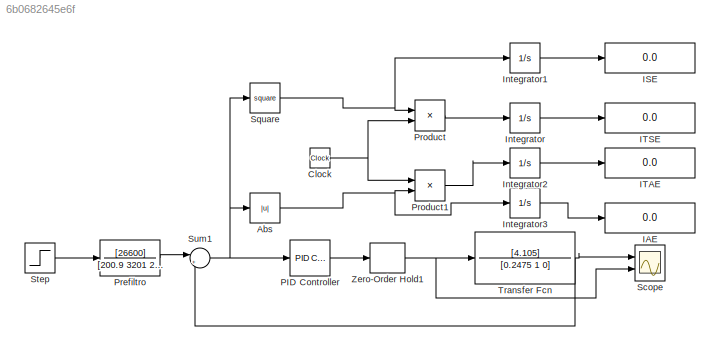
MODEL slx_6b0682645e6f
KIND model
CONFIG AbsTol = auto
CONFIG EnableMultiTasking = off
CONFIG FixedStep = auto
CONFIG MaxStep = auto
CONFIG MinStep = auto
CONFIG RelTol = 1e-3
CONFIG SampleTimeConstraint = Unconstrained
CONFIG Solver = VariableStepAuto
CONFIG SolverName = VariableStepAuto
CONFIG StartTime = 0.0
CONFIG StopTime = 10.0
BLOCK [Abs] Abs
  SaturateOnIntegerOverflow = off
BLOCK [Clock] Clock
BLOCK [Display] IAE
  Decimation = 1
  Ports = [1]
BLOCK [Display] ISE
  Decimation = 1
  Ports = [1]
BLOCK [Display] ITAE
  Decimation = 1
  Ports = [1]
BLOCK [Display] ITSE
  Decimation = 1
  Ports = [1]
BLOCK [Integrator] Integrator
  Ports = [1, 1]
BLOCK [Integrator] Integrator1
  Ports = [1, 1]
BLOCK [Integrator] Integrator2
  Ports = [1, 1]
BLOCK [Integrator] Integrator3
  Ports = [1, 1]
BLOCK [Reference] PID Controller  REF=simulink/Continuous/PID Controller
  Ports = [1, 1]
  SourceBlock = simulink/Continuous/PID Controller
  SourceProductBaseCode = SL
  SourceProductName = Simulink
  SourceType = PID 1dof
BLOCK [TransferFcn] Prefiltro
  Denominator = [200.9 3201 26600]
  Numerator = [26600]
BLOCK [Product] Product
  InputSameDT = off
  OutDataTypeStr = Inherit: Inherit via internal rule
  Ports = [2, 1]
  RndMeth = Floor
  SaturateOnIntegerOverflow = off
BLOCK [Product] Product1
  InputSameDT = off
  OutDataTypeStr = Inherit: Inherit via internal rule
  Ports = [2, 1]
  RndMeth = Floor
  SaturateOnIntegerOverflow = off
BLOCK [Scope] Scope
  Floating = off
  NumInputPorts = 2
  Ports = [2]
  ScopeSpecificationString = Simulink.scopes.TimeScopeBlockCfg('CurrentConfiguration', extmgr.ConfigurationSet(extmgr.Configuration('Core','General UI',true),extmgr.Configuration('Core','Source UI',true),extmgr.Configuration('Sources','WiredSimulink',true),extmgr.Configuration('Visuals','Time Domain',true,'SerializedDisplays',{struct('MinYLimReal','-2.10961','MaxYLimReal','3.97854','YLabelReal','','MinYLimMag','0.00000','MaxY...<+1450ch>
BLOCK [Math] Square
  Operator = square
  Ports = [1, 1]
BLOCK [Step] Step
  SampleTime = 0
  Time = 0
BLOCK [Sum] Sum1
  IconShape = round
  InputSameDT = off
  Inputs = |+-
  OutDataTypeStr = Inherit: Inherit via internal rule
  Ports = [2, 1]
  SaturateOnIntegerOverflow = off
BLOCK [TransferFcn] Transfer Fcn
  Denominator = [0.2475 1 0]
  Numerator = [4.105]
BLOCK [ZeroOrderHold] Zero-Order Hold1
  SampleTime = 0.005
NET Abs:1 -> Integrator3:1, Product1:2
NET Clock:1 -> Product1:1, Product:2
LINE Integrator1:1 -> ISE:1
LINE Integrator2:1 -> ITAE:1
LINE Integrator3:1 -> IAE:1
LINE Integrator:1 -> ITSE:1
LINE PID Controller:1 -> Zero-Order Hold1:1
LINE Prefiltro:1 -> Sum1:1
LINE Product1:1 -> Integrator2:1
LINE Product:1 -> Integrator:1
NET Square:1 -> Integrator1:1, Product:1
LINE Step:1 -> Prefiltro:1
NET Sum1:1 -> Abs:1, PID Controller:1, Square:1
NET Transfer Fcn:1 -> Scope:1, Sum1:2
NET Zero-Order Hold1:1 -> Scope:2, Transfer Fcn:1
note: NET lines group one-source signal fan-out (src -> all destinations, sorted); 1:1 wires keep LINE
